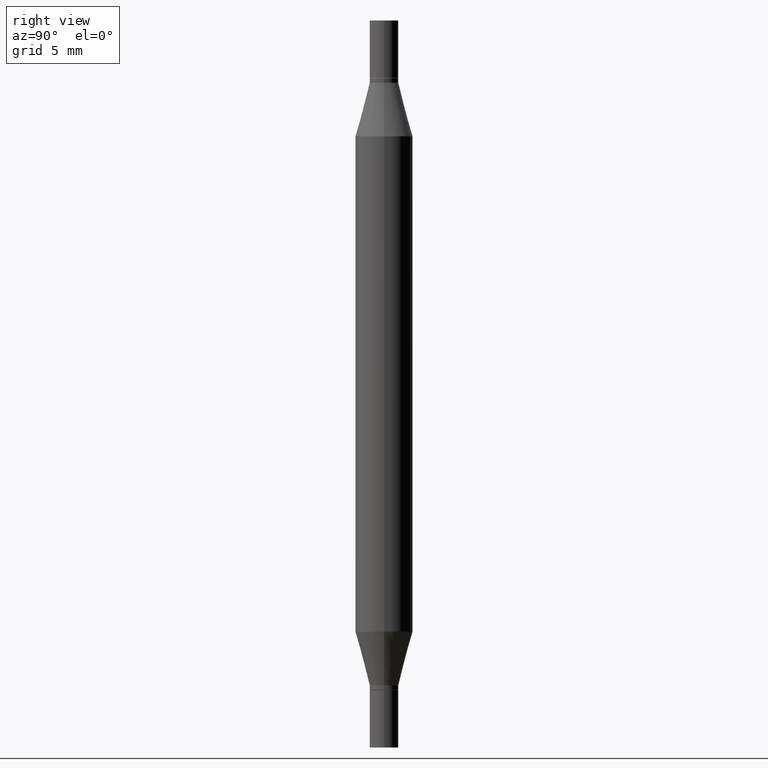
[diagram: clean part render]
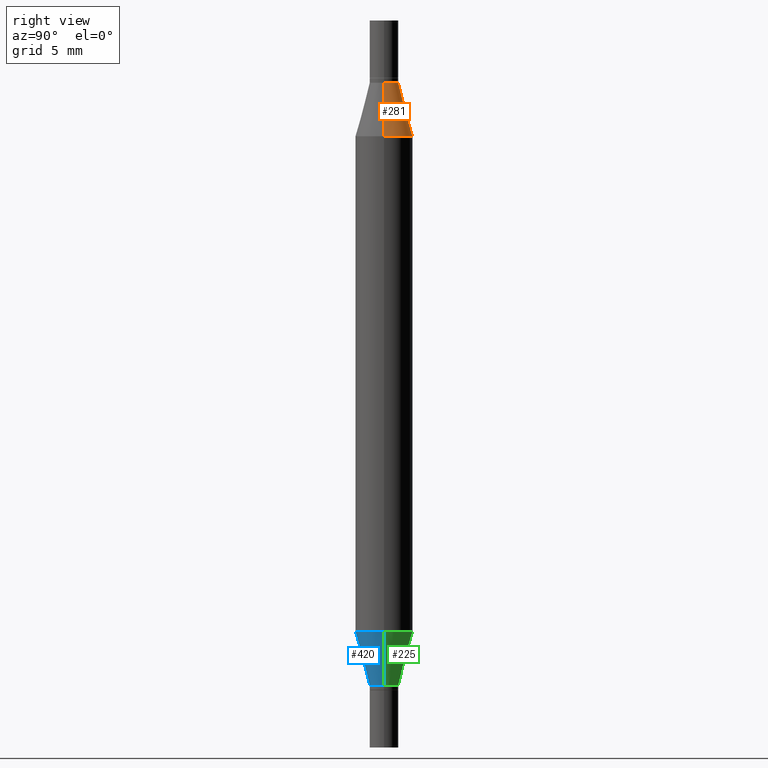
[diagram: same view with three faces highlighted in distinct colors, each labeled with its STEP entity id]
A machine part, right view with three faces highlighted in distinct colors.
Their STEP definitions:

[orange] entity #281 — the highlighted conical surface has half-angle 15 deg.
#45 = DIRECTION ( 'NONE',  ( 0.2588190451025213501, -5.180148453816008779E-15, -0.9659258262890682012 ) ) ;
#70 = LINE ( 'NONE', #971, #916 ) ;
#75 = FACE_OUTER_BOUND ( 'NONE', #818, .T. ) ;
#128 = VERTEX_POINT ( 'NONE', #893 ) ;
#149 = DIRECTION ( 'NONE',  ( -0.2588190451025213501, -1.597197180879714326E-15, -0.9659258262890682012 ) ) ;
#174 = CARTESIAN_POINT ( 'NONE',  ( 3.345645873741884627E-29, -4.467088663909703532E-16, -0.1280000000000001137 ) ) ;
#207 = VERTEX_POINT ( 'NONE', #649 ) ;
#217 = LINE ( 'NONE', #441, #744 ) ;
#237 = CARTESIAN_POINT ( 'NONE',  ( 0.02954999999999991661, -6.530554135165988789E-16, -0.1280000000000001137 ) ) ;
#249 = CARTESIAN_POINT ( 'NONE',  ( 3.345645873741884627E-29, -4.467088663909703532E-16, -0.1280000000000001137 ) ) ;
#281 = ADVANCED_FACE ( 'NONE', ( #75 ), #742, .T. ) ;
#283 = ORIENTED_EDGE ( 'NONE', *, *, #885, .F. ) ;
#284 = CIRCLE ( 'NONE', #364, 0.02954999999999991661 ) ;
#299 = ORIENTED_EDGE ( 'NONE', *, *, #586, .T. ) ;
#309 = VERTEX_POINT ( 'NONE', #237 ) ;
#364 = AXIS2_PLACEMENT_3D ( 'NONE', #174, #479, #851 ) ;
#402 = DIRECTION ( 'NONE',  ( 1.000000000000000000, -6.982962677686265133E-15, 0.000000000000000000 ) ) ;
#441 = CARTESIAN_POINT ( 'NONE',  ( -0.02954999999999991661, -2.439811505568221169E-16, -0.1280000000000001137 ) ) ;
#473 = ORIENTED_EDGE ( 'NONE', *, *, #688, .F. ) ;
#479 = DIRECTION ( 'NONE',  ( 2.445468806185136597E-29, 3.491805094961124077E-15, 1.000000000000000000 ) ) ;
#530 = DIRECTION ( 'NONE',  ( 1.000000000000000000, -6.982962677686265133E-15, 0.000000000000000000 ) ) ;
#586 = EDGE_CURVE ( 'NONE', #866, #128, #931, .T. ) ;
#588 = CARTESIAN_POINT ( 'NONE',  ( 3.076410765668156654E-29, -8.311408901143919011E-16, -0.2380954988232820146 ) ) ;
#649 = CARTESIAN_POINT ( 'NONE',  ( -0.02954999999999991661, -2.275696666105042854E-16, -0.1280000000000001137 ) ) ;
#677 = EDGE_CURVE ( 'NONE', #309, #866, #70, .T. ) ;
#688 = EDGE_CURVE ( 'NONE', #207, #128, #217, .T. ) ;
#694 = DIRECTION ( 'NONE',  ( -2.445468806185136597E-29, -3.491805094961124077E-15, -1.000000000000000000 ) ) ;
#742 = CONICAL_SURFACE ( 'NONE', #774, 0.02954999999999991661, 0.2617993877991500740 ) ;
#744 = VECTOR ( 'NONE', #149, 39.37007874015747433 ) ;
#745 = ORIENTED_EDGE ( 'NONE', *, *, #677, .T. ) ;
#774 = AXIS2_PLACEMENT_3D ( 'NONE', #249, #694, #402 ) ;
#818 = EDGE_LOOP ( 'NONE', ( #473, #283, #745, #299 ) ) ;
#851 = DIRECTION ( 'NONE',  ( 1.000000000000000000, -6.982962677686265133E-15, 0.000000000000000000 ) ) ;
#857 = CARTESIAN_POINT ( 'NONE',  ( 0.05904999999999999832, -1.243484836231766624E-15, -0.2380954988232820146 ) ) ;
#866 = VERTEX_POINT ( 'NONE', #857 ) ;
#885 = EDGE_CURVE ( 'NONE', #309, #207, #284, .T. ) ;
#893 = CARTESIAN_POINT ( 'NONE',  ( -0.05904999999999999832, -4.260284833459836245E-16, -0.2380954988232820146 ) ) ;
#916 = VECTOR ( 'NONE', #45, 39.37007874015747433 ) ;
#931 = CIRCLE ( 'NONE', #946, 0.05904999999999999832 ) ;
#946 = AXIS2_PLACEMENT_3D ( 'NONE', #588, #977, #530 ) ;
#971 = CARTESIAN_POINT ( 'NONE',  ( 0.02954999999999991661, -6.530554135165988789E-16, -0.1280000000000001137 ) ) ;
#977 = DIRECTION ( 'NONE',  ( 2.445468806185136597E-29, 3.491805094961124077E-15, 1.000000000000000000 ) ) ;

[blue] entity #420 — the highlighted conical surface has half-angle 15 deg.
#4 = EDGE_LOOP ( 'NONE', ( #640, #589, #967, #716 ) ) ;
#7 = FACE_OUTER_BOUND ( 'NONE', #4, .T. ) ;
#12 = CARTESIAN_POINT ( 'NONE',  ( -0.02954999999999991661, -4.583140203546760956E-15, -1.368099999999999872 ) ) ;
#29 = CIRCLE ( 'NONE', #886, 0.02954999999999991661 ) ;
#97 = CARTESIAN_POINT ( 'NONE',  ( 0.05904999999999999832, -4.804643186156564878E-15, -1.258004501176717804 ) ) ;
#116 = LINE ( 'NONE', #805, #615 ) ;
#118 = CARTESIAN_POINT ( 'NONE',  ( -0.05904999999999999832, -2.206690208753205272E-15, -1.258004501176717804 ) ) ;
#165 = CARTESIAN_POINT ( 'NONE',  ( 3.076410765668156654E-29, -4.392299240039190746E-15, -1.258004501176717804 ) ) ;
#235 = DIRECTION ( 'NONE',  ( 1.000000000000000000, -6.982962677686281699E-15, 0.000000000000000000 ) ) ;
#311 = CARTESIAN_POINT ( 'NONE',  ( 3.345645873741884627E-29, -4.776695619671307391E-15, -1.368099999999999872 ) ) ;
#320 = EDGE_CURVE ( 'NONE', #672, #887, #508, .T. ) ;
#323 = VERTEX_POINT ( 'NONE', #12 ) ;
#359 = EDGE_CURVE ( 'NONE', #323, #429, #29, .T. ) ;
#398 = VECTOR ( 'NONE', #607, 39.37007874015747433 ) ;
#420 = ADVANCED_FACE ( 'NONE', ( #7 ), #489, .T. ) ;
#429 = VERTEX_POINT ( 'NONE', #842 ) ;
#469 = CARTESIAN_POINT ( 'NONE',  ( -0.02954999999999991661, -4.566730241254198034E-15, -1.368099999999999872 ) ) ;
#472 = DIRECTION ( 'NONE',  ( 1.000000000000000000, -6.982962677686273021E-15, 0.000000000000000000 ) ) ;
#489 = CONICAL_SURFACE ( 'NONE', #659, 0.02954999999999991661, 0.2617993877991500740 ) ;
#508 = CIRCLE ( 'NONE', #759, 0.05904999999999999832 ) ;
#572 = DIRECTION ( 'NONE',  ( 0.2588190451025213501, 1.565188264969621968E-15, 0.9659258262890682012 ) ) ;
#589 = ORIENTED_EDGE ( 'NONE', *, *, #359, .T. ) ;
#606 = DIRECTION ( 'NONE',  ( -2.445468806185136597E-29, 3.491481338843145583E-15, 1.000000000000000000 ) ) ;
#607 = DIRECTION ( 'NONE',  ( -0.2588190451025213501, 5.211531920934551042E-15, 0.9659258262890682012 ) ) ;
#610 = DIRECTION ( 'NONE',  ( -2.445468806185136597E-29, 3.491481338843145583E-15, 1.000000000000000000 ) ) ;
#615 = VECTOR ( 'NONE', #572, 39.37007874015747433 ) ;
#618 = LINE ( 'NONE', #469, #398 ) ;
#640 = ORIENTED_EDGE ( 'NONE', *, *, #806, .F. ) ;
#659 = AXIS2_PLACEMENT_3D ( 'NONE', #311, #610, #235 ) ;
#672 = VERTEX_POINT ( 'NONE', #118 ) ;
#689 = DIRECTION ( 'NONE',  ( -2.445468806185136597E-29, 3.491481338843145583E-15, 1.000000000000000000 ) ) ;
#716 = ORIENTED_EDGE ( 'NONE', *, *, #320, .F. ) ;
#759 = AXIS2_PLACEMENT_3D ( 'NONE', #165, #689, #472 ) ;
#805 = CARTESIAN_POINT ( 'NONE',  ( 0.02954999999999991661, -4.983042166796936213E-15, -1.368099999999999872 ) ) ;
#806 = EDGE_CURVE ( 'NONE', #323, #672, #618, .T. ) ;
#842 = CARTESIAN_POINT ( 'NONE',  ( 0.02954999999999991661, -4.983042166796936213E-15, -1.368099999999999872 ) ) ;
#855 = CARTESIAN_POINT ( 'NONE',  ( 3.345645873741884627E-29, -4.776695619671307391E-15, -1.368099999999999872 ) ) ;
#886 = AXIS2_PLACEMENT_3D ( 'NONE', #855, #606, #907 ) ;
#887 = VERTEX_POINT ( 'NONE', #97 ) ;
#898 = EDGE_CURVE ( 'NONE', #429, #887, #116, .T. ) ;
#907 = DIRECTION ( 'NONE',  ( 1.000000000000000000, -6.982962677686281699E-15, 0.000000000000000000 ) ) ;
#967 = ORIENTED_EDGE ( 'NONE', *, *, #898, .T. ) ;

[green] entity #225 — the highlighted conical surface has half-angle 15 deg.
#12 = CARTESIAN_POINT ( 'NONE',  ( -0.02954999999999991661, -4.583140203546760956E-15, -1.368099999999999872 ) ) ;
#62 = ORIENTED_EDGE ( 'NONE', *, *, #898, .F. ) ;
#97 = CARTESIAN_POINT ( 'NONE',  ( 0.05904999999999999832, -4.804643186156564878E-15, -1.258004501176717804 ) ) ;
#116 = LINE ( 'NONE', #805, #615 ) ;
#118 = CARTESIAN_POINT ( 'NONE',  ( -0.05904999999999999832, -2.206690208753205272E-15, -1.258004501176717804 ) ) ;
#122 = ORIENTED_EDGE ( 'NONE', *, *, #739, .T. ) ;
#129 = DIRECTION ( 'NONE',  ( 1.000000000000000000, -6.982962677686273021E-15, 0.000000000000000000 ) ) ;
#224 = CIRCLE ( 'NONE', #754, 0.05904999999999999832 ) ;
#225 = ADVANCED_FACE ( 'NONE', ( #446 ), #290, .T. ) ;
#256 = EDGE_CURVE ( 'NONE', #887, #672, #224, .T. ) ;
#290 = CONICAL_SURFACE ( 'NONE', #494, 0.02954999999999991661, 0.2617993877991500740 ) ;
#297 = CARTESIAN_POINT ( 'NONE',  ( 3.345645873741884627E-29, -4.776695619671307391E-15, -1.368099999999999872 ) ) ;
#303 = CIRCLE ( 'NONE', #662, 0.02954999999999991661 ) ;
#323 = VERTEX_POINT ( 'NONE', #12 ) ;
#325 = DIRECTION ( 'NONE',  ( -2.445468806185136597E-29, 3.491481338843145583E-15, 1.000000000000000000 ) ) ;
#356 = CARTESIAN_POINT ( 'NONE',  ( 3.076410765668156654E-29, -4.392299240039190746E-15, -1.258004501176717804 ) ) ;
#372 = ORIENTED_EDGE ( 'NONE', *, *, #256, .F. ) ;
#398 = VECTOR ( 'NONE', #607, 39.37007874015747433 ) ;
#429 = VERTEX_POINT ( 'NONE', #842 ) ;
#446 = FACE_OUTER_BOUND ( 'NONE', #656, .T. ) ;
#456 = DIRECTION ( 'NONE',  ( -2.445468806185136597E-29, 3.491481338843145583E-15, 1.000000000000000000 ) ) ;
#464 = CARTESIAN_POINT ( 'NONE',  ( 3.345645873741884627E-29, -4.776695619671307391E-15, -1.368099999999999872 ) ) ;
#469 = CARTESIAN_POINT ( 'NONE',  ( -0.02954999999999991661, -4.566730241254198034E-15, -1.368099999999999872 ) ) ;
#494 = AXIS2_PLACEMENT_3D ( 'NONE', #297, #456, #596 ) ;
#572 = DIRECTION ( 'NONE',  ( 0.2588190451025213501, 1.565188264969621968E-15, 0.9659258262890682012 ) ) ;
#596 = DIRECTION ( 'NONE',  ( 1.000000000000000000, -6.982962677686281699E-15, 0.000000000000000000 ) ) ;
#607 = DIRECTION ( 'NONE',  ( -0.2588190451025213501, 5.211531920934551042E-15, 0.9659258262890682012 ) ) ;
#615 = VECTOR ( 'NONE', #572, 39.37007874015747433 ) ;
#618 = LINE ( 'NONE', #469, #398 ) ;
#631 = ORIENTED_EDGE ( 'NONE', *, *, #806, .T. ) ;
#656 = EDGE_LOOP ( 'NONE', ( #122, #631, #372, #62 ) ) ;
#662 = AXIS2_PLACEMENT_3D ( 'NONE', #464, #325, #773 ) ;
#672 = VERTEX_POINT ( 'NONE', #118 ) ;
#739 = EDGE_CURVE ( 'NONE', #429, #323, #303, .T. ) ;
#754 = AXIS2_PLACEMENT_3D ( 'NONE', #356, #958, #129 ) ;
#773 = DIRECTION ( 'NONE',  ( 1.000000000000000000, -6.982962677686281699E-15, 0.000000000000000000 ) ) ;
#805 = CARTESIAN_POINT ( 'NONE',  ( 0.02954999999999991661, -4.983042166796936213E-15, -1.368099999999999872 ) ) ;
#806 = EDGE_CURVE ( 'NONE', #323, #672, #618, .T. ) ;
#842 = CARTESIAN_POINT ( 'NONE',  ( 0.02954999999999991661, -4.983042166796936213E-15, -1.368099999999999872 ) ) ;
#887 = VERTEX_POINT ( 'NONE', #97 ) ;
#898 = EDGE_CURVE ( 'NONE', #429, #887, #116, .T. ) ;
#958 = DIRECTION ( 'NONE',  ( -2.445468806185136597E-29, 3.491481338843145583E-15, 1.000000000000000000 ) ) ;